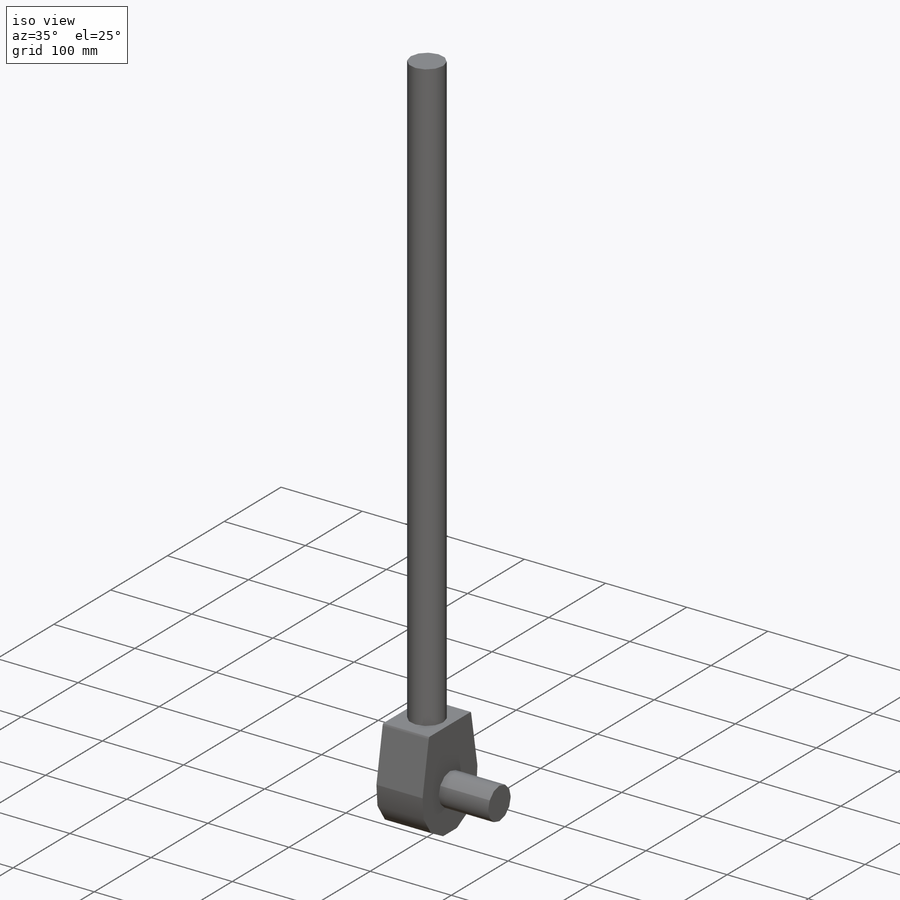
[diagram: iso view]
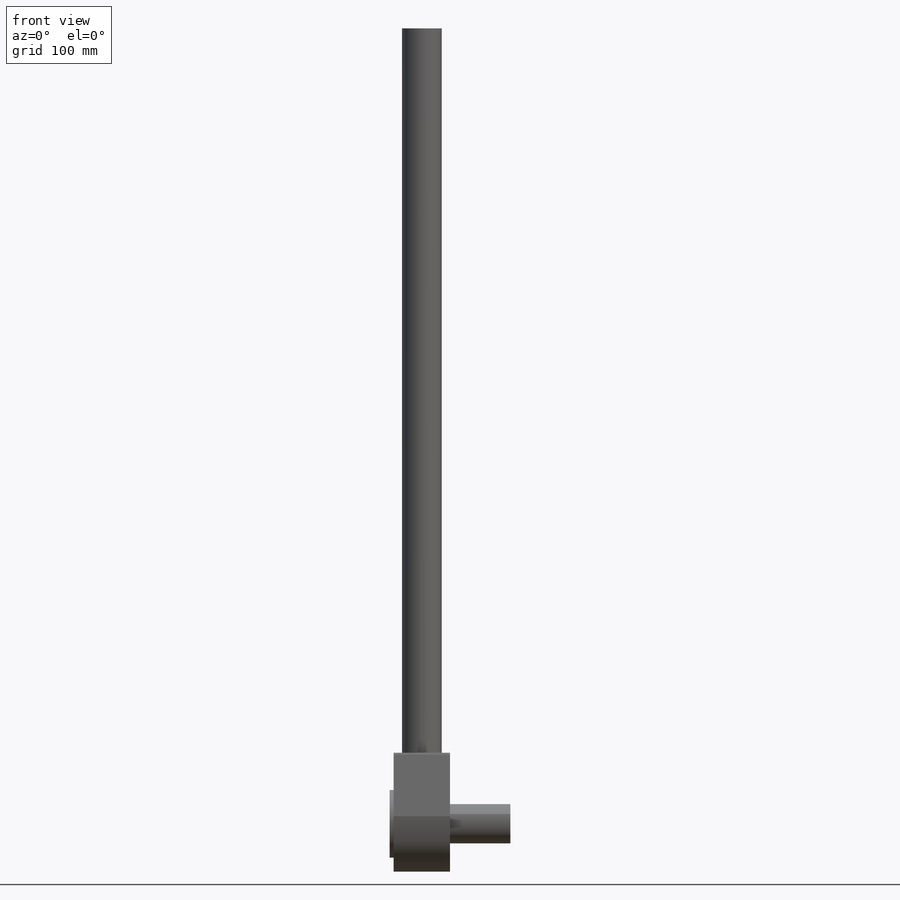
[diagram: front view]
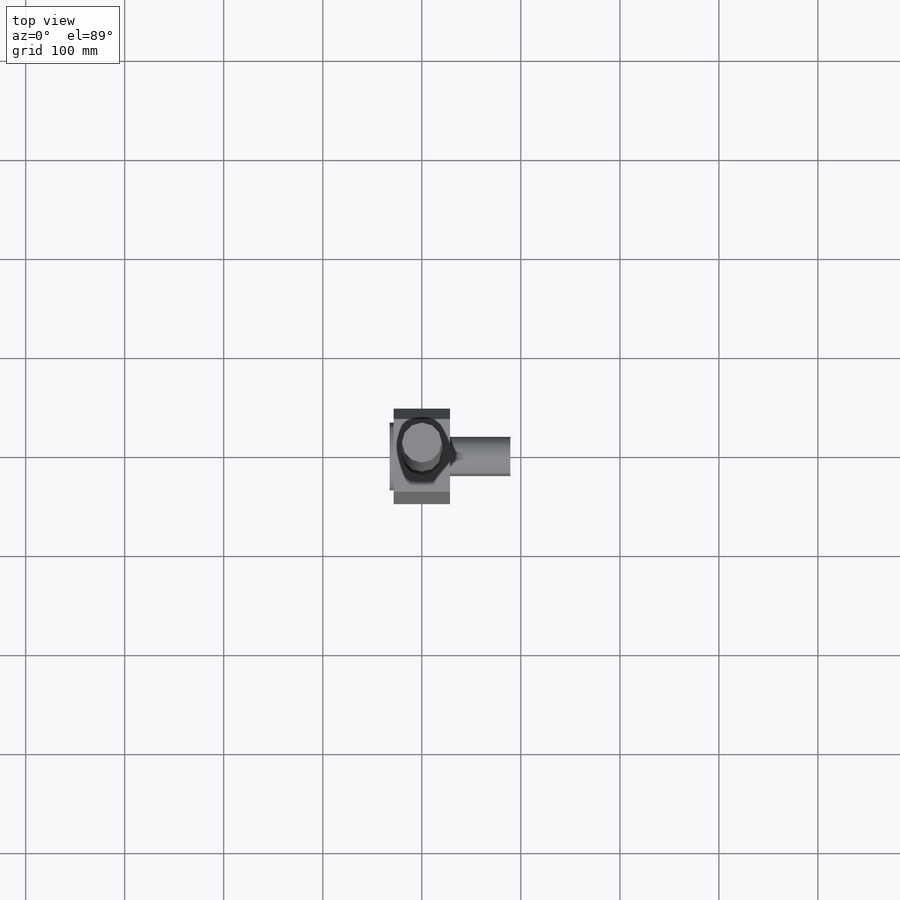
[diagram: top view]
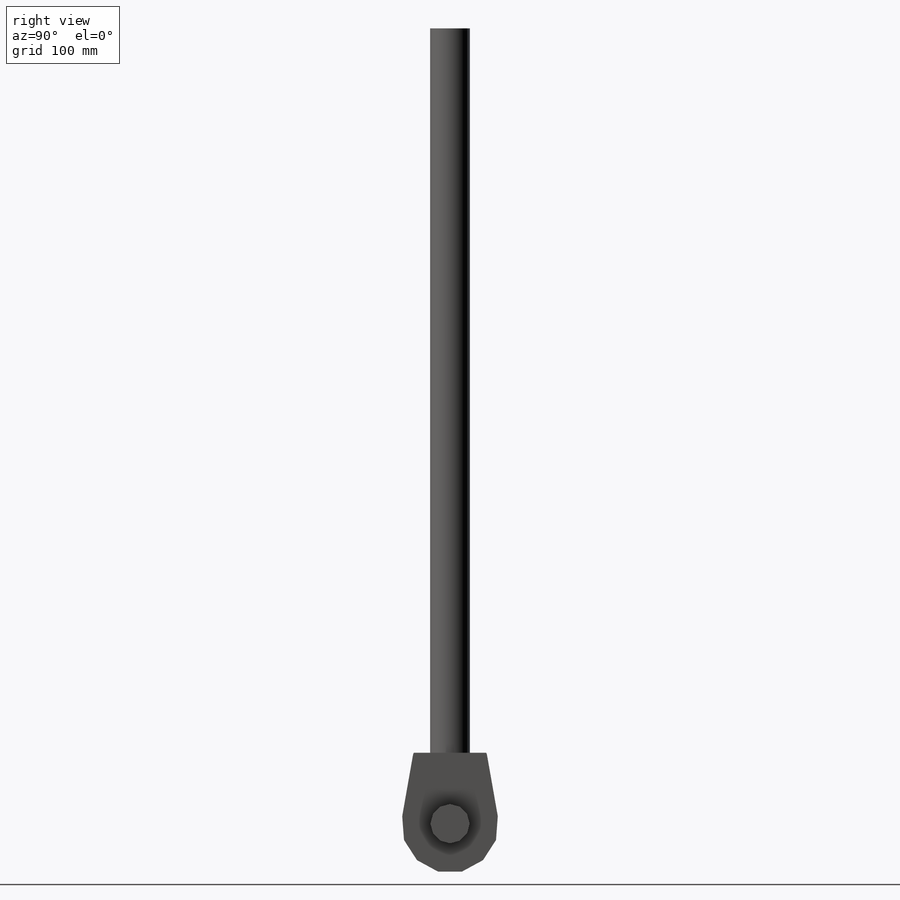
[diagram: right view]
SOLIDWORKS PART (.sldprt)
format: sldprt  version: not decoded by parser v0  size: 150,016 bytes
history: native  units: mm
features: sketch x4, extrude x4, material x1 (+13 scaffold rows collapsed)
feature tree (22):
  scaffold x13  (default folders/planes/origin — collapsed)
  material  "Material <not specified>"
  sketch  "Sketch6"
  extrude  "Extrude1"  Depth=28.448mm
  sketch  "Sketch7"  dims[D1=40.132mm]
  extrude  "Extrude2"  Depth=731.393mm
  sketch  "Sketch8"
  extrude  "Extrude3"  Depth=60.96mm
  sketch  "Sketch9"  dims[D1=39.624mm]
  extrude  "Extrude4"  Depth=60.96mm
decode coverage: 6 of 8 modeling features carry decoded parameters
note: suppression state not decoded; provenance and decode notes live in map.json
